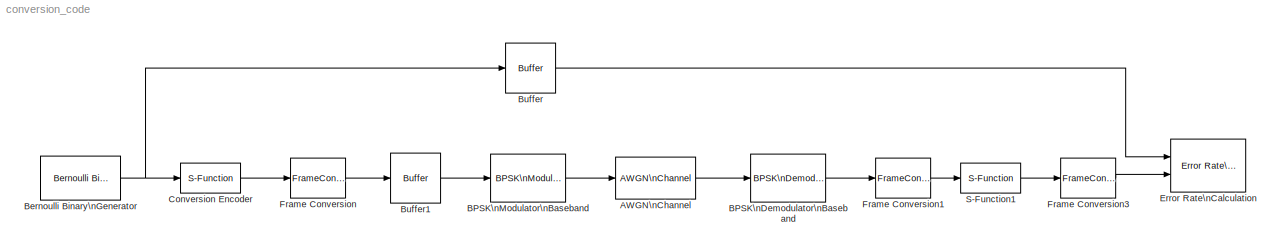
MODEL conversion_code
KIND model
BLOCK [Reference] AWGN\nChannel  REF=commchan2/AWGN\nChannel
  EbNodB = SNR
  EsNodB = 10
  Ports = [1, 1]
  Ps = 1
  SNRdB = 10
  ShowPortLabels = on
  SourceBlock = commchan2/AWGN\nChannel
  SourceType = AWGN Channel
  Tsym = 1e-5
  bitsPerSym = 1
  noiseMode = Signal to noise ratio  (Eb/No)
  seed = 67
  variance = 1
BLOCK [Reference] BPSK\nDemodulator\nBaseband  REF=commdigbbndpm2/BPSK\nDemodulator\nBaseband
  Ph = 0
  Ports = [1, 1]
  ShowPortLabels = on
  SourceBlock = commdigbbndpm2/BPSK\nDemodulator\nBaseband
  SourceType = BPSK Demodulator Baseband
  numSamp = 1
BLOCK [Reference] BPSK\nModulator\nBaseband  REF=commdigbbndpm2/BPSK\nModulator\nBaseband
  Ph = 0
  Ports = [1, 1]
  ShowPortLabels = on
  SourceBlock = commdigbbndpm2/BPSK\nModulator\nBaseband
  SourceType = BPSK Modulator Baseband
  numSamp = 1
BLOCK [Reference] Bernoulli Binary\nGenerator  REF=commrandsrc2/Bernoulli Binary\nGenerator
  P = 0.5
  Ports = [0, 1]
  ShowPortLabels = on
  SourceBlock = commrandsrc2/Bernoulli Binary\nGenerator
  SourceType = Bernoulli Binary Generator
  Ts = 1e-5
  frameBased = off
  orient = off
  sampPerFrame = 1
  seed = 61
BLOCK [Reference] Buffer  REF=dspbuff3/Buffer
  N = 20
  Ports = [1, 1]
  SourceBlock = dspbuff3/Buffer
  SourceType = Buffer
  V = 0
  ic = 0
BLOCK [Reference] Buffer1  REF=dspbuff3/Buffer
  N = 40
  Ports = [1, 1]
  SourceBlock = dspbuff3/Buffer
  SourceType = Buffer
  V = 0
  ic = 0
BLOCK [S-Function] Conversion Encoder
  FunctionName = encode
  Ports = [1, 1]
BLOCK [Reference] Error Rate\nCalculation  REF=commsink2/Error Rate\nCalculation
  N = 0
  PMode = Workspace
  Ports = [2]
  RsMode2 = off
  SourceBlock = commsink2/Error Rate\nCalculation
  SourceType = Error Rate Calculation
  WsName = BitErrorRate
  cp_mode = Entire frame
  maxBits = 1e6
  numErr = 100
  st_delay = 0
  stop = off
  subframe = []
BLOCK [FrameConversion] Frame Conversion
  OutFrame = Frame based
BLOCK [FrameConversion] Frame Conversion1
  OutFrame = Sample based
BLOCK [FrameConversion] Frame Conversion3
  OutFrame = Frame based
BLOCK [S-Function] S-Function1
  FunctionName = decode
  Ports = [1, 1]
LINE AWGN\nChannel:1 -> BPSK\nDemodulator\nBaseband:1
LINE BPSK\nDemodulator\nBaseband:1 -> Frame Conversion1:1
LINE BPSK\nModulator\nBaseband:1 -> AWGN\nChannel:1
NET Bernoulli Binary\nGenerator:1 -> Buffer:1, Conversion Encoder:1
LINE Buffer1:1 -> BPSK\nModulator\nBaseband:1
LINE Buffer:1 -> Error Rate\nCalculation:1
LINE Conversion Encoder:1 -> Frame Conversion:1
LINE Frame Conversion1:1 -> S-Function1:1
LINE Frame Conversion3:1 -> Error Rate\nCalculation:2
LINE Frame Conversion:1 -> Buffer1:1
LINE S-Function1:1 -> Frame Conversion3:1
note: NET lines group one-source signal fan-out (src -> all destinations, sorted); 1:1 wires keep LINE
